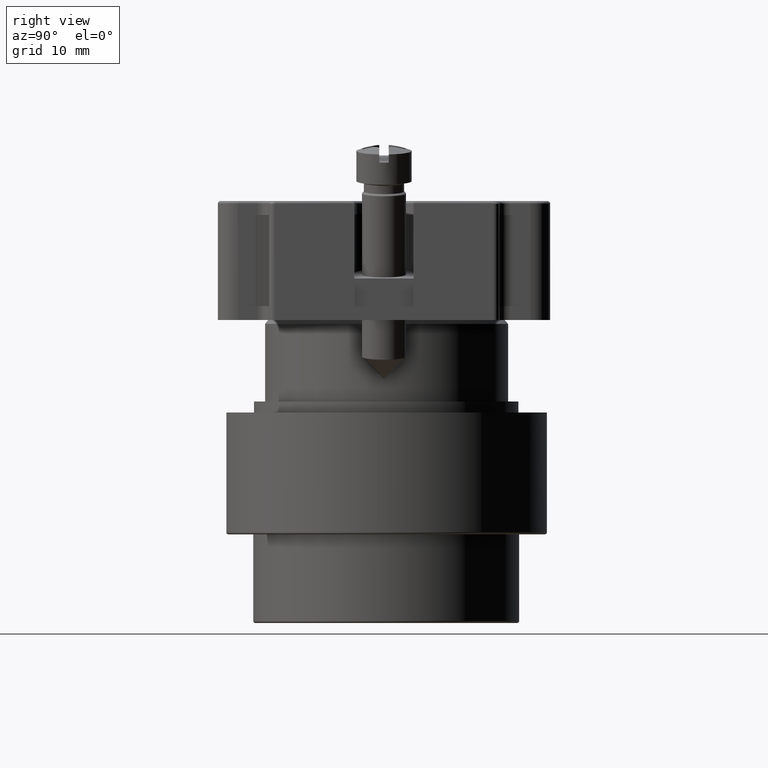
[diagram: clean part render]
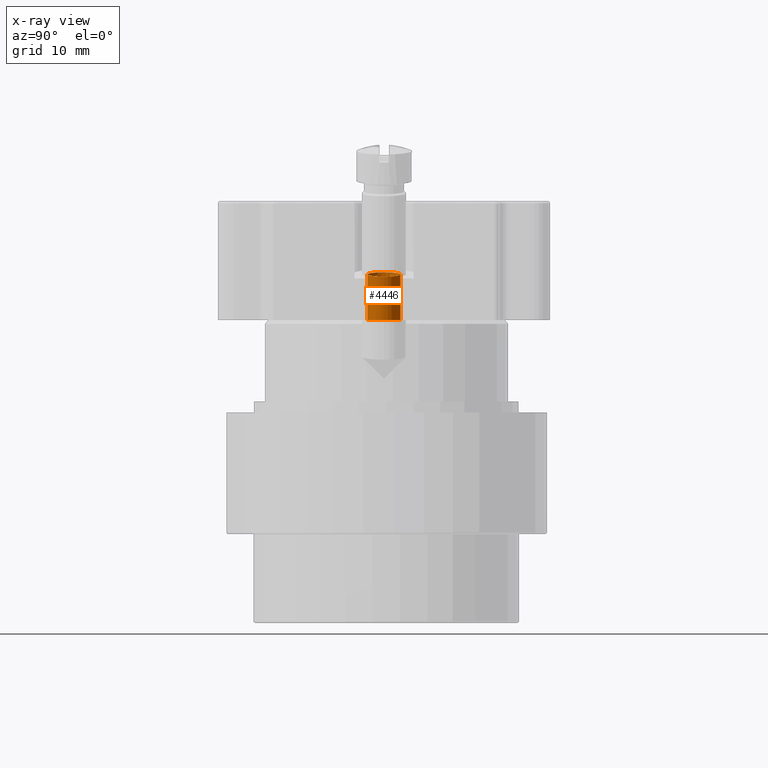
[diagram: x-ray — body ghosted, one internal face saturated and labeled with its STEP entity id]
A machine part, right view, then the same camera in x-ray: the body is ghosted and one INTERNAL B-rep face — a face not visible from any outside direction — is saturated and labeled: STEP entity #4446.
In plain terms, the highlighted face is a freeform B-spline surface patch.
Its self-contained STEP definition (entity closure, byte-faithful):
#4308=CARTESIAN_POINT('',(17.812305177016967,10.142864828157554,0.0));
#4309=VERTEX_POINT('',#4308);
#4310=CARTESIAN_POINT('',(16.299361736146736,10.142864828157554,0.0));
#4311=DIRECTION('',(0.0,0.0,1.0));
#4312=DIRECTION('',(-1.0,0.0,0.0));
#4313=AXIS2_PLACEMENT_3D('',#4310,#4311,#4312);
#4314=ELLIPSE('',#4313,1.512943440870229,1.500000000000000);
#4315=EDGE_CURVE('',#4309,#4309,#4314,.T.);
#4406=CARTESIAN_POINT('',(16.891848076524120,8.642864828157554,4.500380556654996));
#4407=CARTESIAN_POINT('',(16.273585587337223,8.642864828157554,-0.195789288330078));
#4408=CARTESIAN_POINT('',(18.379015368584835,8.642864828157554,4.304591268324918));
#4409=CARTESIAN_POINT('',(17.760752879397938,8.642864828157554,-0.391578576660155));
#4410=CARTESIAN_POINT('',(18.379015368584835,10.142864828157554,4.304591268324918));
#4411=CARTESIAN_POINT('',(17.760752879397938,10.142864828157554,-0.391578576660155));
#4412=CARTESIAN_POINT('',(18.379015368584835,11.642864828157554,4.304591268324918));
#4413=CARTESIAN_POINT('',(17.760752879397938,11.642864828157554,-0.391578576660155));
#4414=CARTESIAN_POINT('',(16.891848076524120,11.642864828157554,4.500380556654996));
#4415=CARTESIAN_POINT('',(16.273585587337223,11.642864828157554,-0.195789288330078));
#4416=CARTESIAN_POINT('',(15.404680784463405,11.642864828157554,4.696169844985073));
#4417=CARTESIAN_POINT('',(14.786418295276507,11.642864828157554,-2.775558E-016));
#4418=CARTESIAN_POINT('',(15.404680784463405,10.142864828157554,4.696169844985073));
#4419=CARTESIAN_POINT('',(14.786418295276508,10.142864828157554,-2.220446E-016));
#4420=CARTESIAN_POINT('',(15.404680784463405,8.642864828157554,4.696169844985073));
#4421=CARTESIAN_POINT('',(14.786418295276507,8.642864828157554,-2.775558E-016));
#4422=CARTESIAN_POINT('',(16.891848076524120,8.642864828157554,4.500380556654996));
#4423=CARTESIAN_POINT('',(16.273585587337223,8.642864828157554,-0.195789288330078));
#4431=(BOUNDED_SURFACE()B_SPLINE_SURFACE(1,2,((#4406,#4408,#4410,#4412,#4414,#4416,#4418,#4420,#4422),(#4407,#4409,#4411,#4413,#4415,#4417,#4419,#4421,#4423)),.UNSPECIFIED.,.F.,.T.,.U.)B_SPLINE_SURFACE_WITH_KNOTS((2,2),(3,2,2,2,3),(-6.925485711769186,-3.767690438799086),(0.0,2.356194490192345,4.712388980384691,7.068583470577035,9.424777960769381),.UNSPECIFIED.)GEOMETRIC_REPRESENTATION_ITEM()RATIONAL_B_SPLINE_SURFACE(((1.0,0.707106781186548,1.0,0.707106781186548,1.0,0.707106781186548,1.0,0.707106781186548,1.0),(1.0,0.707106781186548,1.0,0.707106781186548,1.0,0.707106781186548,1.0,0.707106781186548,1.0)))REPRESENTATION_ITEM('')SURFACE());
#4432=ORIENTED_EDGE('',*,*,#4315,.F.);
#4433=EDGE_LOOP('',(#4432));
#4434=FACE_OUTER_BOUND('',#4433,.T.);
#4435=CARTESIAN_POINT('',(16.841174079877227,11.642864828157556,4.115473338216141));
#4436=VERTEX_POINT('',#4435);
#4437=CARTESIAN_POINT('',(16.841174079877227,10.142864828157554,4.115473338216140));
#4438=DIRECTION('',(-0.130526192220052,0.0,-0.991444861373810));
#4439=DIRECTION('',(0.0,1.0,0.0));
#4440=AXIS2_PLACEMENT_3D('',#4437,#4438,#4439);
#4441=CIRCLE('',#4440,1.500000000000000);
#4442=EDGE_CURVE('',#4436,#4436,#4441,.T.);
#4443=ORIENTED_EDGE('',*,*,#4442,.F.);
#4444=EDGE_LOOP('',(#4443));
#4445=FACE_BOUND('',#4444,.T.);
#4446=ADVANCED_FACE('',(#4434,#4445),#4431,.F.);